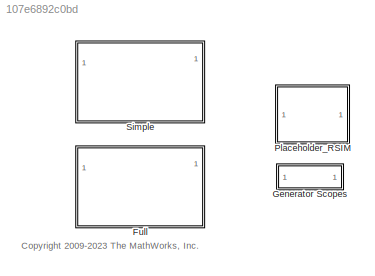
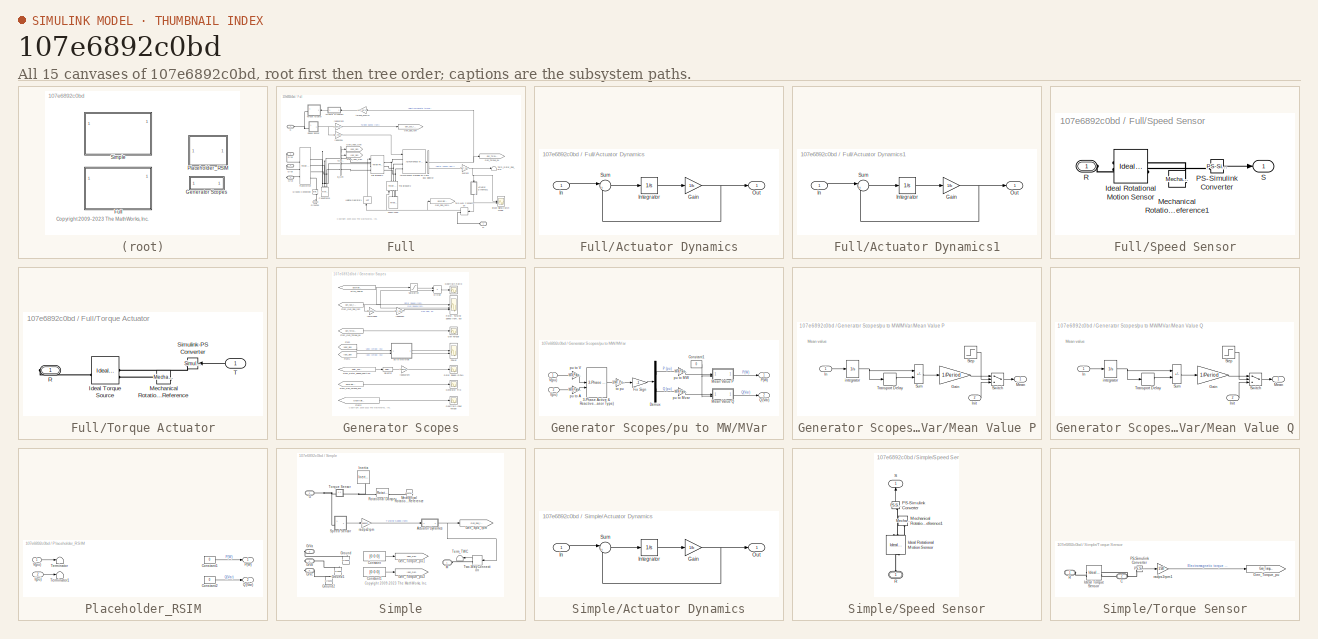
[diagram: thumbnail index - all 15 canvases of the model, root first then tree order]
MODEL slx_107e6892c0bd
KIND library
CONFIG AbsTol = auto
CONFIG EnableMultiTasking = on
CONFIG FixedStep = auto
CONFIG MaxStep = auto
CONFIG MinStep = auto
CONFIG RelTol = 1e-3
CONFIG SampleTimeConstraint = Unconstrained
CONFIG SolverName = ode45
CONFIG StartTime = 0.0
CONFIG StopTime = 10.0
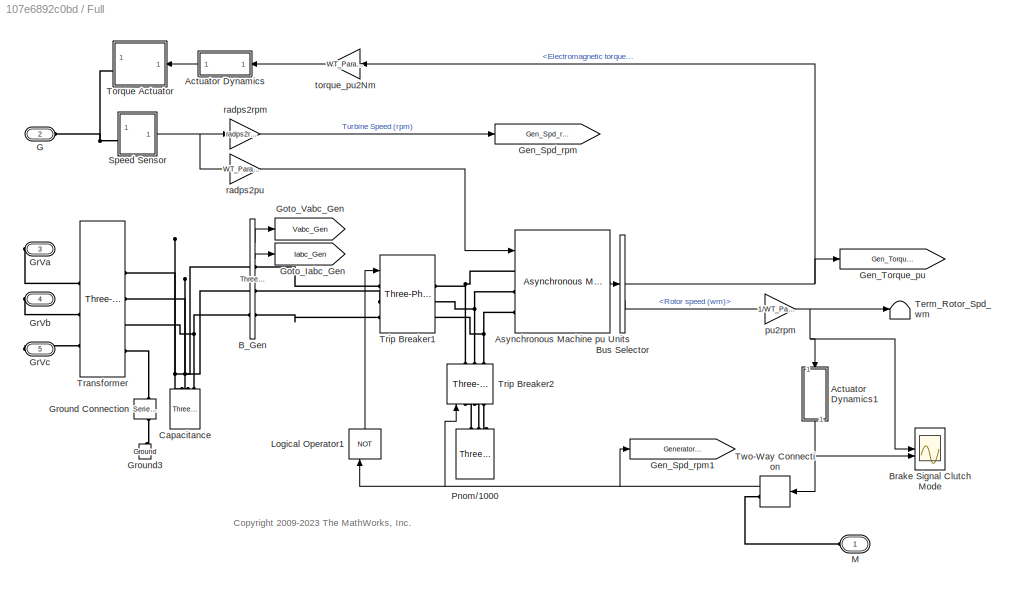
BLOCK [SubSystem] Full
BLOCK [SubSystem] Full/Actuator Dynamics
  NameLocation = top
BLOCK [Gain] Full/Actuator Dynamics/Gain
  Gain = 1/b
BLOCK [Inport] Full/Actuator Dynamics/In
BLOCK [Integrator] Full/Actuator Dynamics/Integrator
  InitialCondition = x_initial
BLOCK [Outport] Full/Actuator Dynamics/Out
  VectorParamsAs1DForOutWhenUnconnected = off
BLOCK [Sum] Full/Actuator Dynamics/Sum
  InputSameDT = on
  Inputs = |+-
  OutDataTypeStr = Inherit: Same as first input
  SaturateOnIntegerOverflow = on
BLOCK [SubSystem] Full/Actuator Dynamics1
  NameLocation = left
BLOCK [Gain] Full/Actuator Dynamics1/Gain
  Gain = 1/b
BLOCK [Inport] Full/Actuator Dynamics1/In
BLOCK [Integrator] Full/Actuator Dynamics1/Integrator
  InitialCondition = x_initial
BLOCK [Outport] Full/Actuator Dynamics1/Out
  VectorParamsAs1DForOutWhenUnconnected = off
BLOCK [Sum] Full/Actuator Dynamics1/Sum
  InputSameDT = on
  Inputs = |+-
  OutDataTypeStr = Inherit: Same as first input
  SaturateOnIntegerOverflow = on
BLOCK [Reference] Full/Asynchronous Machine pu Units  REF=spsAsynchronousMachinepuUnitsLib/Asynchronous Machine
pu Units
  SourceBlock = spsAsynchronousMachinepuUnitsLib/Asynchronous Machine\npu Units
  SourceType = Asynchronous Machine
BLOCK [Reference] Full/B_Gen  REF=spsThreePhaseVIMeasurementLib/Three-Phase
V-I Measurement
  SourceBlock = spsThreePhaseVIMeasurementLib/Three-Phase\nV-I Measurement
  SourceType = Three-Phase VI Measurement
BLOCK [Scope] Full/Brake Signal Clutch Mode
  Floating = off
  NumInputPorts = 2
  ScopeSpecificationString = Simulink.scopes.TimeScopeBlockCfg('CurrentConfiguration', extmgr.ConfigurationSet(extmgr.Configuration('Core','General UI',true),extmgr.Configuration('Core','Source UI',true),extmgr.Configuration('Sources','WiredSimulink',true,'DataLoggingVariableName','ScopeData12','DataLoggingSaveFormat','StructureWithTime','DataLoggingDecimation','1','DataLoggingDecimateData',true),extmgr.Configuration('Visuals...<+2368ch>
BLOCK [BusSelector] Full/Bus Selector
  OutputSignals = Mechanical.Electromagnetic torque Te (pu),Mechanical.Rotor speed (wm)
BLOCK [Reference] Full/Capacitance  REF=spsThreePhaseSeriesRLCLoadLib/Three-Phase
Series RLC Load
  AttributesFormatString = \n
  NameLocation = right
  SourceBlock = spsThreePhaseSeriesRLCLoadLib/Three-Phase\nSeries RLC Load
  SourceType = Three-Phase Series RLC Load
BLOCK [PMIOPort] Full/G
  NameLocation = top
  Port = 2
  Side = Left
BLOCK [Goto] Full/Gen_Spd_rpm
  GotoTag = Gen_Spd_rpm
  TagVisibility = global
BLOCK [Goto] Full/Gen_Spd_rpm1
  GotoTag = Generator_Trip
  TagVisibility = global
BLOCK [Goto] Full/Gen_Torque_pu
  GotoTag = Gen_Torque_pu
  TagVisibility = global
BLOCK [Goto] Full/Goto_Iabc_Gen
  GotoTag = Iabc_Gen
  TagVisibility = global
BLOCK [Goto] Full/Goto_Vabc_Gen
  GotoTag = Vabc_Gen
  TagVisibility = global
BLOCK [PMIOPort] Full/GrVa
  Port = 3
  Side = Right
BLOCK [PMIOPort] Full/GrVb
  Port = 4
  Side = Right
BLOCK [PMIOPort] Full/GrVc
  Port = 5
  Side = Right
BLOCK [Reference] Full/Ground Connection  REF=spsSeriesRLCBranchLib/Series RLC Branch
  NameLocation = left
  SourceBlock = spsSeriesRLCBranchLib/Series RLC Branch
  SourceType = Series RLC Branch
BLOCK [Reference] Full/Ground3  REF=spsGroundLib/Ground
  AttributesFormatString = \n
  NameLocation = right
  SourceBlock = spsGroundLib/Ground
  SourceType = Ground
BLOCK [Logic] Full/Logical Operator1
  AllPortsSameDT = off
  NameLocation = right
  Operator = NOT
  OutDataTypeStr = float('double')
  SampleTime = 0
BLOCK [PMIOPort] Full/M
  Side = Left
  Tag = PMCPort
BLOCK [Reference] Full/Pnom//1000  REF=spsThreePhaseSeriesRLCLoadLib/Three-Phase
Series RLC Load
  AttributesFormatString = \n
  NameLocation = right
  SourceBlock = spsThreePhaseSeriesRLCLoadLib/Three-Phase\nSeries RLC Load
  SourceType = Three-Phase Series RLC Load
BLOCK [SubSystem] Full/Speed Sensor
BLOCK [Reference] Full/Speed Sensor/Ideal Rotational Motion Sensor  REF=fl_lib/Mechanical/Mechanical Sensors/Ideal Rotational
Motion Sensor
  SourceBlock = fl_lib/Mechanical/Mechanical Sensors/Ideal Rotational\nMotion Sensor
  SourceType = Ideal Rotational\nMotion Sensor
BLOCK [Reference] Full/Speed Sensor/Mechanical Rotational Reference1  REF=fl_lib/Mechanical/Rotational Elements/Mechanical
Rotational Reference
  SourceBlock = fl_lib/Mechanical/Rotational Elements/Mechanical\nRotational Reference
  SourceType = Mechanical\nRotational Reference
BLOCK [Reference] Full/Speed Sensor/PS-Simulink Converter  REF=nesl_utility/PS-Simulink
Converter
  SourceBlock = nesl_utility/PS-Simulink\nConverter
  SourceType = PS-Simulink\nConverter
BLOCK [PMIOPort] Full/Speed Sensor/R
  Side = Left
BLOCK [Outport] Full/Speed Sensor/S
  NameLocation = top
  VectorParamsAs1DForOutWhenUnconnected = off
BLOCK [Terminator] Full/Term_Rotor_Spd_wm
BLOCK [SubSystem] Full/Torque Actuator
BLOCK [Reference] Full/Torque Actuator/Ideal Torque Source  REF=fl_lib/Mechanical/Mechanical Sources/Ideal Torque Source
  SourceBlock = fl_lib/Mechanical/Mechanical Sources/Ideal Torque Source
  SourceType = Ideal Torque Source
BLOCK [Reference] Full/Torque Actuator/Mechanical Rotational Reference  REF=fl_lib/Mechanical/Rotational Elements/Mechanical
Rotational Reference
  SourceBlock = fl_lib/Mechanical/Rotational Elements/Mechanical\nRotational Reference
  SourceType = Mechanical\nRotational Reference
BLOCK [PMIOPort] Full/Torque Actuator/R
  Side = Right
BLOCK [Reference] Full/Torque Actuator/Simulink-PS Converter  REF=nesl_utility/Simulink-PS
Converter
  NameLocation = top
  SourceBlock = nesl_utility/Simulink-PS\nConverter
  SourceType = Simulink-PS\nConverter
BLOCK [Inport] Full/Torque Actuator/T
BLOCK [Reference] Full/Transformer  REF=spsThreePhaseTransformerTwoWindingsLib/Three-Phase
Transformer
(Two Windings)
  AttributesFormatString = \n
  SourceBlock = spsThreePhaseTransformerTwoWindingsLib/Three-Phase\nTransformer\n(Two Windings)
  SourceType = Three-Phase Transformer (Two Windings)
BLOCK [Reference] Full/Trip Breaker1  REF=spsThreePhaseBreakerLib/Three-Phase Breaker
  SourceBlock = spsThreePhaseBreakerLib/Three-Phase Breaker
  SourceType = Three-Phase Breaker
BLOCK [Reference] Full/Trip Breaker2  REF=spsThreePhaseBreakerLib/Three-Phase Breaker
  NameLocation = right
  SourceBlock = spsThreePhaseBreakerLib/Three-Phase Breaker
  SourceType = Three-Phase Breaker
BLOCK [TwoWayConnection] Full/Two-Way Connection
BLOCK [Gain] Full/pu2rpm
  Gain = 1/WT_Params.Generator.radps2pu*radps2rpm
BLOCK [Gain] Full/radps2pu
  Gain = WT_Params.Generator.radps2pu
BLOCK [Gain] Full/radps2rpm
  Gain = radps2rpm
  NameLocation = top
BLOCK [Gain] Full/torque_pu2Nm
  Gain = WT_Params.Generator.torque_pu2Nm
  NameLocation = top
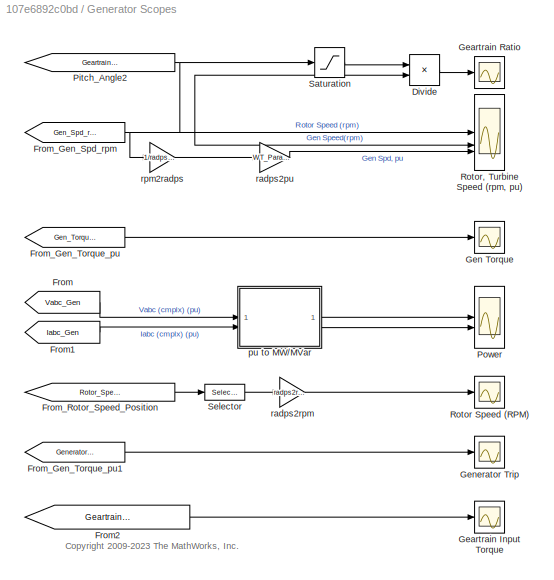
BLOCK [SubSystem] Generator Scopes
BLOCK [Product] Generator Scopes/Divide
  Inputs = /*
  NameLocation = top
BLOCK [From] Generator Scopes/From
  CloseFcn = tagdialog Close
  GotoTag = Vabc_Gen
  TagVisibility = global
BLOCK [From] Generator Scopes/From1
  CloseFcn = tagdialog Close
  GotoTag = Iabc_Gen
  TagVisibility = global
BLOCK [From] Generator Scopes/From2
  CloseFcn = tagdialog Close
  GotoTag = Geartrain_Input_Torque
  TagVisibility = global
BLOCK [From] Generator Scopes/From_Gen_Spd_rpm
  CloseFcn = tagdialog Close
  GotoTag = Gen_Spd_rpm
  TagVisibility = global
BLOCK [From] Generator Scopes/From_Gen_Torque_pu
  CloseFcn = tagdialog Close
  GotoTag = Gen_Torque_pu
  TagVisibility = global
BLOCK [From] Generator Scopes/From_Gen_Torque_pu1
  CloseFcn = tagdialog Close
  GotoTag = Generator_Trip
BLOCK [From] Generator Scopes/From_Rotor_Speed_Position
  CloseFcn = tagdialog Close
  GotoTag = Rotor_Speed_Position
  TagVisibility = global
BLOCK [Scope] Generator Scopes/Geartrain Input Torque
  Floating = off
  NumInputPorts = 1
  ScopeSpecificationString = Simulink.scopes.TimeScopeBlockCfg('CurrentConfiguration', extmgr.ConfigurationSet(extmgr.Configuration('Core','General UI',true),extmgr.Configuration('Core','Source UI',true),extmgr.Configuration('Sources','WiredSimulink',true,'DataLogging',true,'DataLoggingVariableName','Geartrain_Input_Torque_DATA','DataLoggingSaveFormat','StructureWithTime','DataLoggingDecimation','1','DataLoggingDecimateData',...<+1760ch>
BLOCK [Scope] Generator Scopes/Geartrain Ratio
  Floating = off
  NameLocation = top
  NumInputPorts = 1
  ScopeSpecificationString = Simulink.scopes.TimeScopeBlockCfg('CurrentConfiguration', extmgr.ConfigurationSet(extmgr.Configuration('Core','General UI',true),extmgr.Configuration('Core','Source UI',true),extmgr.Configuration('Sources','WiredSimulink',true,'DataLoggingVariableName','ScopeData4','DataLoggingSaveFormat','StructureWithTime','DataLoggingDecimation','1','DataLoggingDecimateData',true),extmgr.Configuration('Visuals'...<+1614ch>
BLOCK [Scope] Generator Scopes/Gen Torque
  Floating = off
  NumInputPorts = 1
  ScopeSpecificationString = Simulink.scopes.TimeScopeBlockCfg('CurrentConfiguration', extmgr.ConfigurationSet(extmgr.Configuration('Core','General UI',true),extmgr.Configuration('Core','Source UI',true),extmgr.Configuration('Sources','WiredSimulink',true,'DataLoggingVariableName','ScopeData8','DataLoggingSaveFormat','StructureWithTime','DataLoggingDecimation','1','DataLoggingDecimateData',true),extmgr.Configuration('Visuals'...<+895ch>
BLOCK [Scope] Generator Scopes/Generator Trip
  Floating = off
  NumInputPorts = 1
  ScopeSpecificationString = Simulink.scopes.TimeScopeBlockCfg('CurrentConfiguration', extmgr.ConfigurationSet(extmgr.Configuration('Core','General UI',true),extmgr.Configuration('Core','Source UI',true),extmgr.Configuration('Sources','WiredSimulink',true,'DataLogging',true,'DataLoggingVariableName','Generator_Trip_DATA','DataLoggingSaveFormat','StructureWithTime','DataLoggingDecimation','1','DataLoggingDecimateData',true),ex...<+923ch>
BLOCK [From] Generator Scopes/Pitch_Angle2
  CloseFcn = tagdialog Close
  GotoTag = Geartrain_Input_Speed
  TagVisibility = global
BLOCK [Scope] Generator Scopes/Power
  Floating = off
  NumInputPorts = 2
  ScopeSpecificationString = Simulink.scopes.TimeScopeBlockCfg('CurrentConfiguration', extmgr.ConfigurationSet(extmgr.Configuration('Core','General UI',true),extmgr.Configuration('Core','Source UI',true),extmgr.Configuration('Sources','WiredSimulink',true,'DataLogging',true,'DataLoggingVariableName','Generator_Power_DATA','DataLoggingSaveFormat','StructureWithTime','DataLoggingDecimation','1','DataLoggingDecimateData',true),e...<+2428ch>
BLOCK [Scope] Generator Scopes/Rotor Speed (RPM)
  Floating = off
  NumInputPorts = 1
  ScopeSpecificationString = Simulink.scopes.TimeScopeBlockCfg('CurrentConfiguration', extmgr.ConfigurationSet(extmgr.Configuration('Core','General UI',true),extmgr.Configuration('Core','Source UI',true),extmgr.Configuration('Sources','WiredSimulink',true,'DataLoggingVariableName','ScopeData6','DataLoggingSaveFormat','StructureWithTime','DataLoggingDecimation','1','DataLoggingDecimateData',true),extmgr.Configuration('Visuals'...<+1660ch>
BLOCK [Scope] Generator Scopes/Rotor, Turbine Speed (rpm, pu)
  Floating = off
  NumInputPorts = 3
  ScopeSpecificationString = Simulink.scopes.TimeScopeBlockCfg('CurrentConfiguration', extmgr.ConfigurationSet(extmgr.Configuration('Core','General UI',true),extmgr.Configuration('Core','Source UI',true),extmgr.Configuration('Sources','WiredSimulink',true,'DataLogging',true,'DataLoggingVariableName','Generator_Speed_DATA','DataLoggingSaveFormat','StructureWithTime','DataLoggingDecimation','1','DataLoggingDecimateData',true),e...<+3046ch>
BLOCK [Saturate] Generator Scopes/Saturation
  LowerLimit = eps
  NameLocation = top
  UpperLimit = inf
BLOCK [Selector] Generator Scopes/Selector
  IndexOptions = Index vector (dialog)
  Indices = [2]
  InputPortWidth = 2
  OutputSizes = 1
BLOCK [SubSystem] Generator Scopes/pu to MW//MVar
BLOCK [Reference] Generator Scopes/pu to MW//MVar/3-Phase Active & Reactive Power (Phasor Type)  REF=powerlib_extras/Phasor
Library/3-Phase
Active & Reactive Power
(Phasor Type)
  SourceBlock = powerlib_extras/Phasor\nLibrary/3-Phase\nActive & Reactive Power\n(Phasor Type)
  SourceType = 3-Phase Active & Reactive Power (Phasor Type)
BLOCK [Constant] Generator Scopes/pu to MW//MVar/Constant1
  Value = 0
BLOCK [Demux] Generator Scopes/pu to MW//MVar/Demux
  DisplayOption = none
  Outputs = 2
BLOCK [Gain] Generator Scopes/pu to MW//MVar/Fix Sign
  Gain = -1
  OutDataTypeStr = Inherit: Same as input
  ParamDataTypeStr = Inherit: Same as input
  SaturateOnIntegerOverflow = on
BLOCK [Inport] Generator Scopes/pu to MW//MVar/I(pu)
  Port = 2
BLOCK [SubSystem] Generator Scopes/pu to MW//MVar/Mean Value P
BLOCK [Gain] Generator Scopes/pu to MW//MVar/Mean Value P/Gain
  Gain = 1/Period
  OutDataTypeStr = Inherit: Same as input
  ParamDataTypeStr = Inherit: Same as input
  SaturateOnIntegerOverflow = on
BLOCK [Inport] Generator Scopes/pu to MW//MVar/Mean Value P/In
BLOCK [Inport] Generator Scopes/pu to MW//MVar/Mean Value P/Init
  Port = 2
BLOCK [Outport] Generator Scopes/pu to MW//MVar/Mean Value P/Mean
  VectorParamsAs1DForOutWhenUnconnected = off
BLOCK [Step] Generator Scopes/pu to MW//MVar/Mean Value P/Step
  SampleTime = 0
  Time = Period+eps
BLOCK [Sum] Generator Scopes/pu to MW//MVar/Mean Value P/Sum
  IconShape = rectangular
  InputSameDT = on
  Inputs = +-
  OutDataTypeStr = Inherit: Same as first input
  SaturateOnIntegerOverflow = on
BLOCK [Switch] Generator Scopes/pu to MW//MVar/Mean Value P/Switch
  InputSameDT = off
  Threshold = 0.5
BLOCK [TransportDelay] Generator Scopes/pu to MW//MVar/Mean Value P/Transport Delay
  DelayTime = Period
BLOCK [Integrator] Generator Scopes/pu to MW//MVar/Mean Value P/integrator
BLOCK [SubSystem] Generator Scopes/pu to MW//MVar/Mean Value Q
BLOCK [Gain] Generator Scopes/pu to MW//MVar/Mean Value Q/Gain
  Gain = 1/Period
  OutDataTypeStr = Inherit: Same as input
  ParamDataTypeStr = Inherit: Same as input
  SaturateOnIntegerOverflow = on
BLOCK [Inport] Generator Scopes/pu to MW//MVar/Mean Value Q/In
BLOCK [Inport] Generator Scopes/pu to MW//MVar/Mean Value Q/Init
  Port = 2
BLOCK [Outport] Generator Scopes/pu to MW//MVar/Mean Value Q/Mean
  VectorParamsAs1DForOutWhenUnconnected = off
BLOCK [Step] Generator Scopes/pu to MW//MVar/Mean Value Q/Step
  SampleTime = 0
  Time = Period+eps
BLOCK [Sum] Generator Scopes/pu to MW//MVar/Mean Value Q/Sum
  IconShape = rectangular
  InputSameDT = on
  Inputs = +-
  OutDataTypeStr = Inherit: Same as first input
  SaturateOnIntegerOverflow = on
BLOCK [Switch] Generator Scopes/pu to MW//MVar/Mean Value Q/Switch
  InputSameDT = off
  Threshold = 0.5
BLOCK [TransportDelay] Generator Scopes/pu to MW//MVar/Mean Value Q/Transport Delay
  DelayTime = Period
BLOCK [Integrator] Generator Scopes/pu to MW//MVar/Mean Value Q/integrator
BLOCK [Outport] Generator Scopes/pu to MW//MVar/P(W)
  VectorParamsAs1DForOutWhenUnconnected = off
BLOCK [Outport] Generator Scopes/pu to MW//MVar/Q(Var)
  Port = 2
  VectorParamsAs1DForOutWhenUnconnected = off
BLOCK [Inport] Generator Scopes/pu to MW//MVar/V(pu)
BLOCK [Gain] Generator Scopes/pu to MW//MVar/pu to A
  Gain = WT_Params.Generator.nominal_power/sqrt(3)/WT_Params.Generator.voltage*sqrt(2)
  OutDataTypeStr = Inherit: Same as input
  ParamDataTypeStr = Inherit: Same as input
  SaturateOnIntegerOverflow = on
BLOCK [Gain] Generator Scopes/pu to MW//MVar/pu to MW
  Gain = WT_Params.Generator.nominal_power
  OutDataTypeStr = Inherit: Same as input
  ParamDataTypeStr = Inherit: Same as input
  SaturateOnIntegerOverflow = on
BLOCK [Gain] Generator Scopes/pu to MW//MVar/pu to Mvar
  Gain = WT_Params.Generator.nominal_power
  OutDataTypeStr = Inherit: Same as input
  ParamDataTypeStr = Inherit: Same as input
  SaturateOnIntegerOverflow = on
BLOCK [Gain] Generator Scopes/pu to MW//MVar/pu to V
  Gain = WT_Params.Generator.voltage*sqrt(2)/sqrt(3)
  OutDataTypeStr = Inherit: Same as input
  ParamDataTypeStr = Inherit: Same as input
  SaturateOnIntegerOverflow = on
BLOCK [Gain] Generator Scopes/pu to MW//MVar/to pu
  Gain = 1/WT_Params.Generator.nominal_power
  OutDataTypeStr = Inherit: Same as input
  ParamDataTypeStr = Inherit: Same as input
  SaturateOnIntegerOverflow = on
BLOCK [Gain] Generator Scopes/radps2pu
  Gain = WT_Params.Generator.radps2pu
BLOCK [Gain] Generator Scopes/radps2rpm
  Gain = radps2rpm
BLOCK [Gain] Generator Scopes/rpm2radps
  Gain = 1/radps2rpm
BLOCK [SubSystem] Placeholder_RSIM
BLOCK [Constant] Placeholder_RSIM/Constant1
  Value = 0
BLOCK [Constant] Placeholder_RSIM/Constant2
  Value = 0
BLOCK [Inport] Placeholder_RSIM/I(pu)
  Port = 2
BLOCK [Outport] Placeholder_RSIM/P(W)
  VectorParamsAs1DForOutWhenUnconnected = off
BLOCK [Outport] Placeholder_RSIM/Q(Var)
  Port = 2
  VectorParamsAs1DForOutWhenUnconnected = off
BLOCK [Terminator] Placeholder_RSIM/Terminator
BLOCK [Terminator] Placeholder_RSIM/Terminator1
BLOCK [Inport] Placeholder_RSIM/V(pu)
BLOCK [SubSystem] Simple
BLOCK [SubSystem] Simple/Actuator Dynamics
BLOCK [Gain] Simple/Actuator Dynamics/Gain
  Gain = 1/b
BLOCK [Inport] Simple/Actuator Dynamics/In
BLOCK [Integrator] Simple/Actuator Dynamics/Integrator
  InitialCondition = x_initial
BLOCK [Outport] Simple/Actuator Dynamics/Out
  VectorParamsAs1DForOutWhenUnconnected = off
BLOCK [Sum] Simple/Actuator Dynamics/Sum
  InputSameDT = on
  Inputs = |+-
  OutDataTypeStr = Inherit: Same as first input
  SaturateOnIntegerOverflow = on
BLOCK [Constant] Simple/Constant
  OutDataTypeStr = Inherit: Inherit via back propagation
  Value = [0 0 0]
BLOCK [Constant] Simple/Constant1
  OutDataTypeStr = Inherit: Inherit via back propagation
  Value = [0 0 0]
BLOCK [PMIOPort] Simple/G
  NameLocation = top
  Port = 2
  Side = Left
BLOCK [Goto] Simple/Gen_Spd_rpm
  GotoTag = Gen_Spd_rpm
  TagVisibility = global
BLOCK [Goto] Simple/Gen_Torque_pu1
  GotoTag = Vabc_Gen
  TagVisibility = global
BLOCK [Goto] Simple/Gen_Torque_pu2
  GotoTag = Iabc_Gen
  TagVisibility = global
BLOCK [PMIOPort] Simple/GrVa
  Port = 3
  Side = Right
BLOCK [PMIOPort] Simple/GrVb
  Port = 4
  Side = Right
BLOCK [PMIOPort] Simple/GrVc
  Port = 5
  Side = Right
BLOCK [Reference] Simple/Ground  REF=spsGroundLib/Ground
  NameLocation = right
  SourceBlock = spsGroundLib/Ground
  SourceType = Ground
BLOCK [Reference] Simple/Ground1  REF=spsGroundLib/Ground
  NameLocation = right
  SourceBlock = spsGroundLib/Ground
  SourceType = Ground
BLOCK [Reference] Simple/Ground2  REF=spsGroundLib/Ground
  NameLocation = right
  SourceBlock = spsGroundLib/Ground
  SourceType = Ground
BLOCK [Reference] Simple/Inertia  REF=fl_lib/Mechanical/Rotational Elements/Inertia
  NameLocation = left
  SourceBlock = fl_lib/Mechanical/Rotational Elements/Inertia
  SourceType = Inertia
BLOCK [PMIOPort] Simple/M
  Side = Left
  Tag = PMCPort
BLOCK [Reference] Simple/Mechanical Rotational Reference  REF=fl_lib/Mechanical/Rotational Elements/Mechanical
Rotational Reference
  NameLocation = top
  SourceBlock = fl_lib/Mechanical/Rotational Elements/Mechanical\nRotational Reference
  SourceType = Mechanical\nRotational Reference
BLOCK [Reference] Simple/Rotational Damper  REF=fl_lib/Mechanical/Rotational Elements/Rotational Damper
  SourceBlock = fl_lib/Mechanical/Rotational Elements/Rotational Damper
  SourceType = Rotational Damper
BLOCK [SubSystem] Simple/Speed Sensor
BLOCK [Reference] Simple/Speed Sensor/Ideal Rotational Motion Sensor  REF=fl_lib/Mechanical/Mechanical Sensors/Ideal Rotational
Motion Sensor
  NameLocation = right
  SourceBlock = fl_lib/Mechanical/Mechanical Sensors/Ideal Rotational\nMotion Sensor
  SourceType = Ideal Rotational\nMotion Sensor
BLOCK [Reference] Simple/Speed Sensor/Mechanical Rotational Reference1  REF=fl_lib/Mechanical/Rotational Elements/Mechanical
Rotational Reference
  NameLocation = left
  SourceBlock = fl_lib/Mechanical/Rotational Elements/Mechanical\nRotational Reference
  SourceType = Mechanical\nRotational Reference
BLOCK [Reference] Simple/Speed Sensor/PS-Simulink Converter  REF=nesl_utility/PS-Simulink
Converter
  NameLocation = left
  SourceBlock = nesl_utility/PS-Simulink\nConverter
  SourceType = PS-Simulink\nConverter
BLOCK [PMIOPort] Simple/Speed Sensor/R
  NameLocation = right
  Side = Left
BLOCK [Outport] Simple/Speed Sensor/S
  NameLocation = right
  VectorParamsAs1DForOutWhenUnconnected = off
BLOCK [Terminator] Simple/Term_TWC
  NameLocation = top
BLOCK [SubSystem] Simple/Torque Sensor
BLOCK [PMIOPort] Simple/Torque Sensor/C
  Port = 2
  Side = Right
BLOCK [Goto] Simple/Torque Sensor/Gen_Torque_pu
  GotoTag = Gen_Torque_pu
  TagVisibility = global
BLOCK [Reference] Simple/Torque Sensor/Ideal Torque Sensor  REF=fl_lib/Mechanical/Mechanical Sensors/Ideal Torque Sensor
  SourceBlock = fl_lib/Mechanical/Mechanical Sensors/Ideal Torque Sensor
  SourceType = Ideal Torque Sensor
BLOCK [Reference] Simple/Torque Sensor/PS-Simulink Converter  REF=nesl_utility/PS-Simulink
Converter
  SourceBlock = nesl_utility/PS-Simulink\nConverter
  SourceType = PS-Simulink\nConverter
BLOCK [PMIOPort] Simple/Torque Sensor/R
  Side = Left
BLOCK [Gain] Simple/Torque Sensor/radps2rpm1
  Gain = 1/500
  NameLocation = top
BLOCK [TwoWayConnection] Simple/Two-Way Connection
BLOCK [Gain] Simple/radps2rpm
  Gain = radps2rpm
ANNOTATION (root): <copyright redacted>
ANNOTATION Full: <copyright redacted>
ANNOTATION Generator Scopes: <copyright redacted>
ANNOTATION Generator Scopes/pu to MW//MVar/Mean Value P: Mean value
ANNOTATION Generator Scopes/pu to MW//MVar/Mean Value Q: Mean value
ANNOTATION Simple: <copyright redacted>
NET Full/Actuator Dynamics/Gain:1 -> Full/Actuator Dynamics/Out:1, Full/Actuator Dynamics/Sum:2
LINE Full/Actuator Dynamics/In:1 -> Full/Actuator Dynamics/Sum:1
LINE Full/Actuator Dynamics/Integrator:1 -> Full/Actuator Dynamics/Gain:1
LINE Full/Actuator Dynamics/Sum:1 -> Full/Actuator Dynamics/Integrator:1
NET Full/Actuator Dynamics1/Gain:1 -> Full/Actuator Dynamics1/Out:1, Full/Actuator Dynamics1/Sum:2
LINE Full/Actuator Dynamics1/In:1 -> Full/Actuator Dynamics1/Sum:1
LINE Full/Actuator Dynamics1/Integrator:1 -> Full/Actuator Dynamics1/Gain:1
LINE Full/Actuator Dynamics1/Sum:1 -> Full/Actuator Dynamics1/Integrator:1
NET Full/Actuator Dynamics1:1 -> Full/Brake Signal Clutch Mode:2, Full/Two-Way Connection:1
LINE Full/Actuator Dynamics:1 -> Full/Torque Actuator:1
LINE Full/Asynchronous Machine pu Units:1 -> Full/Bus Selector:1
LINE Full/B_Gen:1 -> Full/Goto_Vabc_Gen:1
LINE Full/B_Gen:2 -> Full/Goto_Iabc_Gen:1
NET Full/Bus Selector:1 -> Full/Gen_Torque_pu:1, Full/torque_pu2Nm:1
LINE Full/Bus Selector:2 -> Full/pu2rpm:1
LINE Full/Logical Operator1:1 -> Full/Trip Breaker1:1
LINE Full/Speed Sensor/PS-Simulink Converter:1 -> Full/Speed Sensor/S:1
NET Full/Speed Sensor:1 -> Full/radps2pu:1, Full/radps2rpm:1
LINE Full/Torque Actuator/T:1 -> Full/Torque Actuator/Simulink-PS Converter:1
NET Full/Two-Way Connection:1 -> Full/Gen_Spd_rpm1:1, Full/Logical Operator1:1, Full/Trip Breaker2:1
NET Full/pu2rpm:1 -> Full/Actuator Dynamics1:1, Full/Brake Signal Clutch Mode:1, Full/Term_Rotor_Spd_wm:1
LINE Full/radps2pu:1 -> Full/Asynchronous Machine pu Units:1
LINE Full/radps2rpm:1 -> Full/Gen_Spd_rpm:1
LINE Full/torque_pu2Nm:1 -> Full/Actuator Dynamics:1
LINE Generator Scopes/Divide:1 -> Generator Scopes/Geartrain Ratio:1
LINE Generator Scopes/From1:1 -> Generator Scopes/pu to MW//MVar:2
LINE Generator Scopes/From2:1 -> Generator Scopes/Geartrain Input Torque:1
LINE Generator Scopes/From:1 -> Generator Scopes/pu to MW//MVar:1
NET Generator Scopes/From_Gen_Spd_rpm:1 -> Generator Scopes/Divide:2, Generator Scopes/Rotor, Turbine Speed (rpm, pu):2, Generator Scopes/rpm2radps:1
LINE Generator Scopes/From_Gen_Torque_pu1:1 -> Generator Scopes/Generator Trip:1
LINE Generator Scopes/From_Gen_Torque_pu:1 -> Generator Scopes/Gen Torque:1
LINE Generator Scopes/From_Rotor_Speed_Position:1 -> Generator Scopes/Selector:1
NET Generator Scopes/Pitch_Angle2:1 -> Generator Scopes/Rotor, Turbine Speed (rpm, pu):1, Generator Scopes/Saturation:1
LINE Generator Scopes/Saturation:1 -> Generator Scopes/Divide:1
LINE Generator Scopes/Selector:1 -> Generator Scopes/radps2rpm:1
LINE Generator Scopes/pu to MW//MVar/3-Phase Active & Reactive Power (Phasor Type):1 -> Generator Scopes/pu to MW//MVar/to pu:1
NET Generator Scopes/pu to MW//MVar/Constant1:1 -> Generator Scopes/pu to MW//MVar/Mean Value P:2, Generator Scopes/pu to MW//MVar/Mean Value Q:2
LINE Generator Scopes/pu to MW//MVar/Demux:1 -> Generator Scopes/pu to MW//MVar/pu to MW:1
LINE Generator Scopes/pu to MW//MVar/Demux:2 -> Generator Scopes/pu to MW//MVar/pu to Mvar:1
LINE Generator Scopes/pu to MW//MVar/Fix Sign:1 -> Generator Scopes/pu to MW//MVar/Demux:1
LINE Generator Scopes/pu to MW//MVar/I(pu):1 -> Generator Scopes/pu to MW//MVar/pu to A:1
LINE Generator Scopes/pu to MW//MVar/Mean Value P/Gain:1 -> Generator Scopes/pu to MW//MVar/Mean Value P/Switch:1
LINE Generator Scopes/pu to MW//MVar/Mean Value P/In:1 -> Generator Scopes/pu to MW//MVar/Mean Value P/integrator:1
LINE Generator Scopes/pu to MW//MVar/Mean Value P/Init:1 -> Generator Scopes/pu to MW//MVar/Mean Value P/Switch:3
LINE Generator Scopes/pu to MW//MVar/Mean Value P/Step:1 -> Generator Scopes/pu to MW//MVar/Mean Value P/Switch:2
LINE Generator Scopes/pu to MW//MVar/Mean Value P/Sum:1 -> Generator Scopes/pu to MW//MVar/Mean Value P/Gain:1
LINE Generator Scopes/pu to MW//MVar/Mean Value P/Switch:1 -> Generator Scopes/pu to MW//MVar/Mean Value P/Mean:1
LINE Generator Scopes/pu to MW//MVar/Mean Value P/Transport Delay:1 -> Generator Scopes/pu to MW//MVar/Mean Value P/Sum:2
NET Generator Scopes/pu to MW//MVar/Mean Value P/integrator:1 -> Generator Scopes/pu to MW//MVar/Mean Value P/Sum:1, Generator Scopes/pu to MW//MVar/Mean Value P/Transport Delay:1
LINE Generator Scopes/pu to MW//MVar/Mean Value P:1 -> Generator Scopes/pu to MW//MVar/P(W):1
LINE Generator Scopes/pu to MW//MVar/Mean Value Q/Gain:1 -> Generator Scopes/pu to MW//MVar/Mean Value Q/Switch:1
LINE Generator Scopes/pu to MW//MVar/Mean Value Q/In:1 -> Generator Scopes/pu to MW//MVar/Mean Value Q/integrator:1
LINE Generator Scopes/pu to MW//MVar/Mean Value Q/Init:1 -> Generator Scopes/pu to MW//MVar/Mean Value Q/Switch:3
LINE Generator Scopes/pu to MW//MVar/Mean Value Q/Step:1 -> Generator Scopes/pu to MW//MVar/Mean Value Q/Switch:2
LINE Generator Scopes/pu to MW//MVar/Mean Value Q/Sum:1 -> Generator Scopes/pu to MW//MVar/Mean Value Q/Gain:1
LINE Generator Scopes/pu to MW//MVar/Mean Value Q/Switch:1 -> Generator Scopes/pu to MW//MVar/Mean Value Q/Mean:1
LINE Generator Scopes/pu to MW//MVar/Mean Value Q/Transport Delay:1 -> Generator Scopes/pu to MW//MVar/Mean Value Q/Sum:2
NET Generator Scopes/pu to MW//MVar/Mean Value Q/integrator:1 -> Generator Scopes/pu to MW//MVar/Mean Value Q/Sum:1, Generator Scopes/pu to MW//MVar/Mean Value Q/Transport Delay:1
LINE Generator Scopes/pu to MW//MVar/Mean Value Q:1 -> Generator Scopes/pu to MW//MVar/Q(Var):1
LINE Generator Scopes/pu to MW//MVar/V(pu):1 -> Generator Scopes/pu to MW//MVar/pu to V:1
LINE Generator Scopes/pu to MW//MVar/pu to A:1 -> Generator Scopes/pu to MW//MVar/3-Phase Active & Reactive Power (Phasor Type):2
LINE Generator Scopes/pu to MW//MVar/pu to MW:1 -> Generator Scopes/pu to MW//MVar/Mean Value P:1
LINE Generator Scopes/pu to MW//MVar/pu to Mvar:1 -> Generator Scopes/pu to MW//MVar/Mean Value Q:1
LINE Generator Scopes/pu to MW//MVar/pu to V:1 -> Generator Scopes/pu to MW//MVar/3-Phase Active & Reactive Power (Phasor Type):1
LINE Generator Scopes/pu to MW//MVar/to pu:1 -> Generator Scopes/pu to MW//MVar/Fix Sign:1
LINE Generator Scopes/pu to MW//MVar:1 -> Generator Scopes/Power:1
LINE Generator Scopes/pu to MW//MVar:2 -> Generator Scopes/Power:2
LINE Generator Scopes/radps2pu:1 -> Generator Scopes/Rotor, Turbine Speed (rpm, pu):3
LINE Generator Scopes/radps2rpm:1 -> Generator Scopes/Rotor Speed (RPM):1
LINE Generator Scopes/rpm2radps:1 -> Generator Scopes/radps2pu:1
LINE Placeholder_RSIM/Constant1:1 -> Placeholder_RSIM/P(W):1
LINE Placeholder_RSIM/Constant2:1 -> Placeholder_RSIM/Q(Var):1
LINE Placeholder_RSIM/I(pu):1 -> Placeholder_RSIM/Terminator1:1
LINE Placeholder_RSIM/V(pu):1 -> Placeholder_RSIM/Terminator:1
NET Simple/Actuator Dynamics/Gain:1 -> Simple/Actuator Dynamics/Out:1, Simple/Actuator Dynamics/Sum:2
LINE Simple/Actuator Dynamics/In:1 -> Simple/Actuator Dynamics/Sum:1
LINE Simple/Actuator Dynamics/Integrator:1 -> Simple/Actuator Dynamics/Gain:1
LINE Simple/Actuator Dynamics/Sum:1 -> Simple/Actuator Dynamics/Integrator:1
NET Simple/Actuator Dynamics:1 -> Simple/Gen_Spd_rpm:1, Simple/Two-Way Connection:1
LINE Simple/Constant1:1 -> Simple/Gen_Torque_pu2:1
LINE Simple/Constant:1 -> Simple/Gen_Torque_pu1:1
LINE Simple/Speed Sensor/PS-Simulink Converter:1 -> Simple/Speed Sensor/S:1
LINE Simple/Speed Sensor:1 -> Simple/radps2rpm:1
LINE Simple/Torque Sensor/PS-Simulink Converter:1 -> Simple/Torque Sensor/radps2rpm1:1
LINE Simple/Torque Sensor/radps2rpm1:1 -> Simple/Torque Sensor/Gen_Torque_pu:1
LINE Simple/Two-Way Connection:1 -> Simple/Term_TWC:1
LINE Simple/radps2rpm:1 -> Simple/Actuator Dynamics:1
PNET net1: Full/Asynchronous Machine pu Units:LConn1 -- Full/Trip Breaker1:RConn1 -- Full/Trip Breaker2:RConn1
PNET net2: Full/Asynchronous Machine pu Units:LConn2 -- Full/Trip Breaker1:RConn2 -- Full/Trip Breaker2:RConn2
PNET net3: Full/Asynchronous Machine pu Units:LConn3 -- Full/Trip Breaker1:RConn3 -- Full/Trip Breaker2:RConn3
PNET net4: Full/B_Gen:LConn1 -- Full/Capacitance:LConn1 -- Full/Transformer:RConn1
PNET net5: Full/B_Gen:LConn2 -- Full/Capacitance:LConn2 -- Full/Transformer:RConn2
PNET net6: Full/B_Gen:LConn3 -- Full/Capacitance:LConn3 -- Full/Transformer:RConn3
PLINE Full/B_Gen:RConn1 -- Full/Trip Breaker1:LConn1
PLINE Full/B_Gen:RConn2 -- Full/Trip Breaker1:LConn2
PLINE Full/B_Gen:RConn3 -- Full/Trip Breaker1:LConn3
PNET net7: Full/G:RConn1 -- Full/Speed Sensor:LConn1 -- Full/Torque Actuator:RConn1
PLINE Full/GrVa:RConn1 -- Full/Transformer:LConn1
PLINE Full/GrVb:RConn1 -- Full/Transformer:LConn2
PLINE Full/GrVc:RConn1 -- Full/Transformer:LConn3
PLINE Full/Ground Connection:LConn1 -- Full/Transformer:RConn4
PLINE Full/Ground Connection:RConn1 -- Full/Ground3:LConn1
PLINE Full/M:RConn1 -- Full/Two-Way Connection:RConn1
PLINE Full/Pnom//1000:LConn1 -- Full/Trip Breaker2:LConn1
PLINE Full/Pnom//1000:LConn2 -- Full/Trip Breaker2:LConn2
PLINE Full/Pnom//1000:LConn3 -- Full/Trip Breaker2:LConn3
PLINE Full/Speed Sensor/Ideal Rotational Motion Sensor:LConn1 -- Full/Speed Sensor/R:RConn1
PLINE Full/Speed Sensor/Ideal Rotational Motion Sensor:RConn1 -- Full/Speed Sensor/Mechanical Rotational Reference1:LConn1
PLINE Full/Speed Sensor/Ideal Rotational Motion Sensor:RConn2 -- Full/Speed Sensor/PS-Simulink Converter:LConn1
PLINE Full/Torque Actuator/Ideal Torque Source:LConn1 -- Full/Torque Actuator/R:RConn1
PLINE Full/Torque Actuator/Ideal Torque Source:RConn1 -- Full/Torque Actuator/Simulink-PS Converter:RConn1
PLINE Full/Torque Actuator/Ideal Torque Source:RConn2 -- Full/Torque Actuator/Mechanical Rotational Reference:LConn1
PNET net8: Simple/G:RConn1 -- Simple/Speed Sensor:LConn1 -- Simple/Torque Sensor:LConn1
PLINE Simple/GrVa:RConn1 -- Simple/Ground:LConn1
PLINE Simple/GrVb:RConn1 -- Simple/Ground1:LConn1
PLINE Simple/GrVc:RConn1 -- Simple/Ground2:LConn1
PNET net9: Simple/Inertia:LConn1 -- Simple/Rotational Damper:LConn1 -- Simple/Torque Sensor:RConn1
PLINE Simple/M:RConn1 -- Simple/Two-Way Connection:RConn1
PLINE Simple/Mechanical Rotational Reference:LConn1 -- Simple/Rotational Damper:RConn1
PLINE Simple/Speed Sensor/Ideal Rotational Motion Sensor:LConn1 -- Simple/Speed Sensor/R:RConn1
PLINE Simple/Speed Sensor/Ideal Rotational Motion Sensor:RConn1 -- Simple/Speed Sensor/Mechanical Rotational Reference1:LConn1
PLINE Simple/Speed Sensor/Ideal Rotational Motion Sensor:RConn2 -- Simple/Speed Sensor/PS-Simulink Converter:LConn1
PLINE Simple/Torque Sensor/C:RConn1 -- Simple/Torque Sensor/Ideal Torque Sensor:RConn1
PLINE Simple/Torque Sensor/Ideal Torque Sensor:LConn1 -- Simple/Torque Sensor/R:RConn1
PLINE Simple/Torque Sensor/Ideal Torque Sensor:RConn2 -- Simple/Torque Sensor/PS-Simulink Converter:LConn1
note: NET lines group one-source signal fan-out (src -> all destinations, sorted); 1:1 wires keep LINE; PNET lines group multi-terminal physical nets as a canonical sorted terminal list (undirected conserving connections); 2-terminal nets keep the pairwise PLINE form
